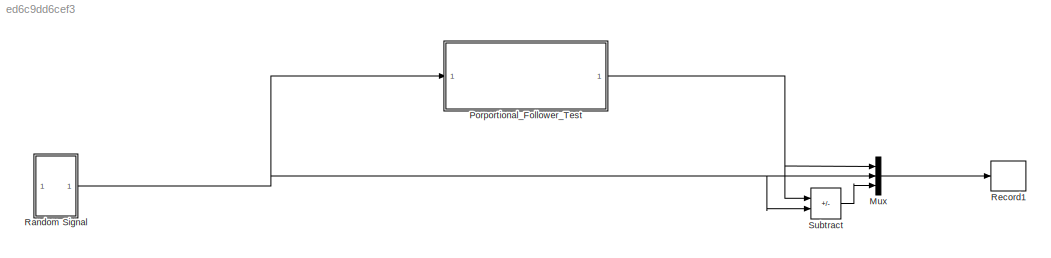
MODEL slx_ed6c9dd6cef3
KIND model
CONFIG AbsTol = auto
CONFIG EnableMultiTasking = off
CONFIG FixedStep = auto
CONFIG MaxStep = auto
CONFIG MinStep = auto
CONFIG RelTol = 1e-3
CONFIG SampleTimeConstraint = Unconstrained
CONFIG SolverName = FixedStepAuto
CONFIG StartTime = 0.0
CONFIG StopTime = 10.0
BLOCK [Mux] Mux
  DisplayOption = bar
  Inputs = 3
BLOCK [SubSystem] Porportional_Follower_Test
  ReferencedSubsystem = Porportional_Follower
  TreatAsAtomicUnit = on
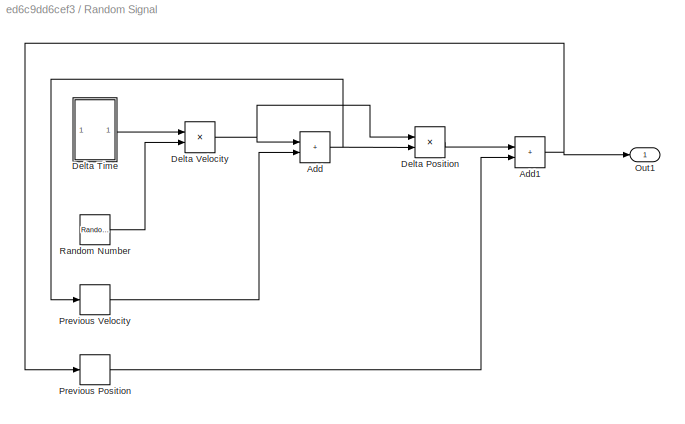
BLOCK [SubSystem] Random Signal
BLOCK [Sum] Random Signal/Add
  IconShape = rectangular
BLOCK [Sum] Random Signal/Add1
  IconShape = rectangular
BLOCK [Product] Random Signal/Delta Position
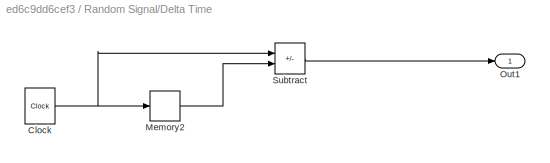
BLOCK [SubSystem] Random Signal/Delta Time
BLOCK [Clock] Random Signal/Delta Time/Clock
BLOCK [Memory] Random Signal/Delta Time/Memory2
BLOCK [Outport] Random Signal/Delta Time/Out1
BLOCK [Sum] Random Signal/Delta Time/Subtract
  IconShape = rectangular
  Inputs = +-
BLOCK [Product] Random Signal/Delta Velocity
BLOCK [Outport] Random Signal/Out1
BLOCK [Memory] Random Signal/Previous Position
BLOCK [Memory] Random Signal/Previous Velocity
BLOCK [RandomNumber] Random Signal/Random Number
  SampleTime = 0.1
  Seed = 8
  Variance = 10
BLOCK [Record] Record1
  FileSettingsInternal = {"entries":[{"content":{"excelSettings":{"content":{},"type":"Streamout.ExcelSettings"}},"type":"Streamout.FileSettingStorage","uuid":"acdd7dc8-f3ec-4f66-8ab5-627e7c3b6412"}],"packageUris":["http://schema.mathworks.com/mf0/streamout_blocks/R2020a"],"version":"1.0"}
  Layout = [1 1]
  SignalsInternal = {"entries":[{"content":{"signals":[{"content":{"blockPath":["TestController/Record1"],"channel":[],"dimensions":[3],"domain":"TestController/Record1","hasChildren":true,"lineColor":"#77ac30","plots":[],"port":1,"sid":[""],"signalID":22,"signalName":"Mux"},"type":"RecordBlkView.Signal","uuid":"b94c3010-9b52-4fa8-b082-984b6e3ed424"},{"content":{"blockPath":["TestController/Record1"],"channel":[1],"d...<+994ch>
  VisualizationBindings = {"sparklinesplugin":{"info":[{"bindingParametersList":[],"subplotID":1}]}}
BLOCK [Sum] Subtract
  IconShape = rectangular
  Inputs = +-
LINE Mux:1 -> Record1:1
NET Porportional_Follower_Test:1 -> Mux:1, Subtract:1
NET Random Signal/Add1:1 -> Random Signal/Out1:1, Random Signal/Previous Position:1
NET Random Signal/Add:1 -> Random Signal/Delta Position:2, Random Signal/Previous Velocity:1
LINE Random Signal/Delta Position:1 -> Random Signal/Add1:1
NET Random Signal/Delta Time/Clock:1 -> Random Signal/Delta Time/Memory2:1, Random Signal/Delta Time/Subtract:1
LINE Random Signal/Delta Time/Memory2:1 -> Random Signal/Delta Time/Subtract:2
LINE Random Signal/Delta Time/Subtract:1 -> Random Signal/Delta Time/Out1:1
LINE Random Signal/Delta Time:1 -> Random Signal/Delta Velocity:1
NET Random Signal/Delta Velocity:1 -> Random Signal/Add:1, Random Signal/Delta Position:1
LINE Random Signal/Previous Position:1 -> Random Signal/Add1:2
LINE Random Signal/Previous Velocity:1 -> Random Signal/Add:2
LINE Random Signal/Random Number:1 -> Random Signal/Delta Velocity:2
NET Random Signal:1 -> Mux:2, Porportional_Follower_Test:1, Subtract:2
LINE Subtract:1 -> Mux:3
note: NET lines group one-source signal fan-out (src -> all destinations, sorted); 1:1 wires keep LINE
